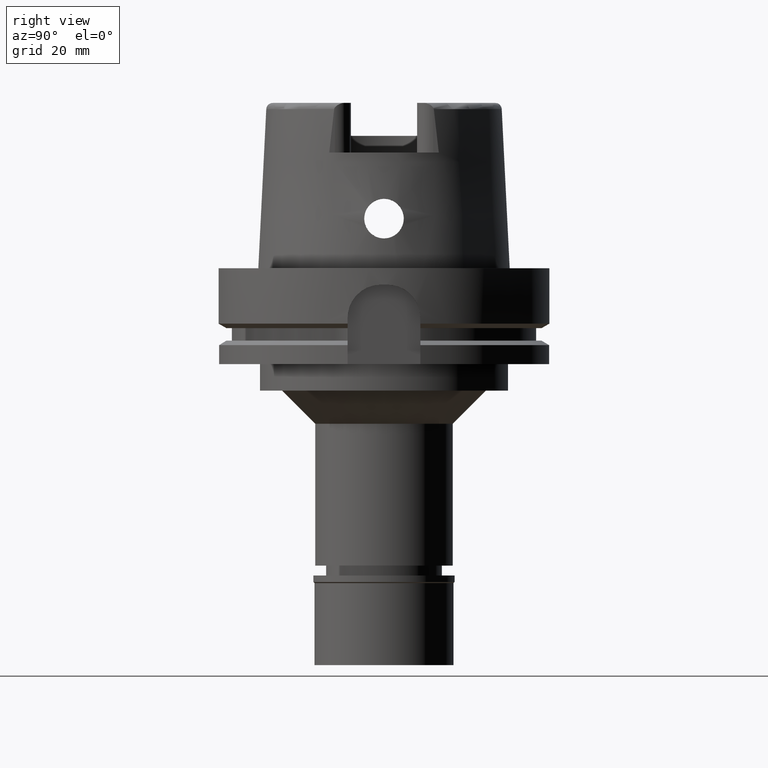
[diagram: clean part render]
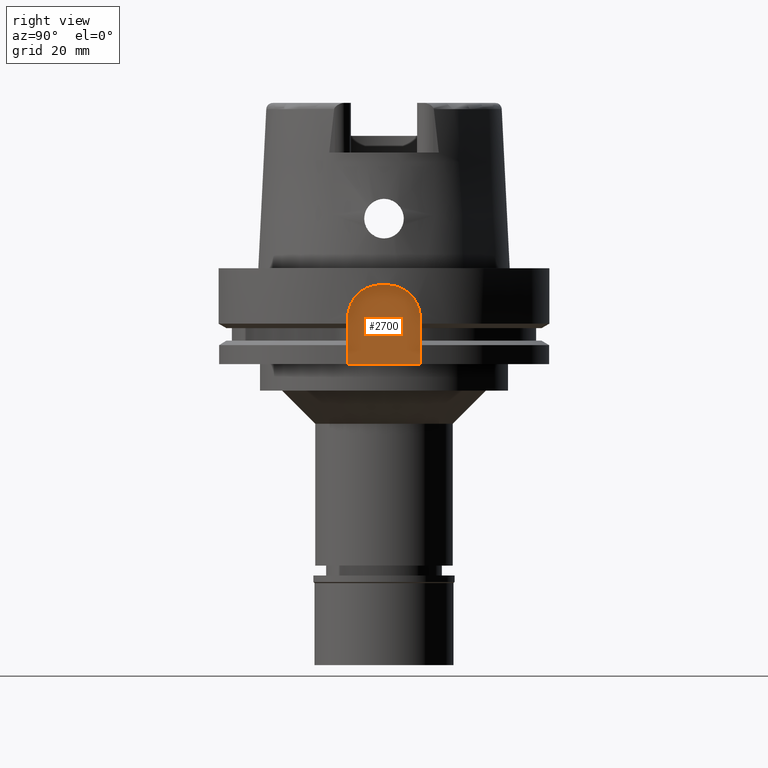
[diagram: same view with one face highlighted and labeled with its STEP entity id]
A machine part, right view. The second image highlights one B-rep face of the part: STEP entity #2700.
In plain terms, the highlighted planar face has unit normal (1, 0, 0).
Its self-contained STEP definition (entity closure, byte-faithful):
#115 = DIRECTION ( 'NONE',  ( 0.0000000000000000000, 0.0000000000000000000, -1.000000000000000000 ) ) ;
#216 = VECTOR ( 'NONE', #5452, 1000.000000000000000 ) ;
#384 = LINE ( 'NONE', #3946, #216 ) ;
#596 = CARTESIAN_POINT ( 'NONE',  ( 44.00000000000000000, 11.00000000000000000, -15.00000000000000000 ) ) ;
#630 = EDGE_CURVE ( 'NONE', #4589, #4876, #4428, .T. ) ;
#684 = CARTESIAN_POINT ( 'NONE',  ( 44.00000000000000000, 1.000000000000000000, -5.000000000000000000 ) ) ;
#731 = CARTESIAN_POINT ( 'NONE',  ( 44.00000000000000000, -11.00000000000000000, -15.00000000000000000 ) ) ;
#827 = PLANE ( 'NONE',  #5430 ) ;
#1052 = CIRCLE ( 'NONE', #1500, 10.00000000000000000 ) ;
#1086 = EDGE_LOOP ( 'NONE', ( #1889, #4165, #2311, #1941, #5162, #4197 ) ) ;
#1179 = EDGE_CURVE ( 'NONE', #4626, #4589, #384, .T. ) ;
#1219 = AXIS2_PLACEMENT_3D ( 'NONE', #3400, #2992, #4689 ) ;
#1423 = VECTOR ( 'NONE', #115, 1000.000000000000000 ) ;
#1453 = CARTESIAN_POINT ( 'NONE',  ( 44.00000000000000000, 1.000000000000000000, -15.00000000000000000 ) ) ;
#1500 = AXIS2_PLACEMENT_3D ( 'NONE', #1453, #4420, #4201 ) ;
#1630 = CARTESIAN_POINT ( 'NONE',  ( 44.00000000000000000, 0.0000000000000000000, 0.0000000000000000000 ) ) ;
#1797 = CARTESIAN_POINT ( 'NONE',  ( 44.00000000000000000, -11.00000000000000000, -29.00000000000000000 ) ) ;
#1805 = EDGE_CURVE ( 'NONE', #5410, #4835, #1052, .T. ) ;
#1889 = ORIENTED_EDGE ( 'NONE', *, *, #2793, .F. ) ;
#1941 = ORIENTED_EDGE ( 'NONE', *, *, #630, .F. ) ;
#2264 = LINE ( 'NONE', #596, #1423 ) ;
#2311 = ORIENTED_EDGE ( 'NONE', *, *, #2503, .F. ) ;
#2503 = EDGE_CURVE ( 'NONE', #4876, #5410, #5045, .T. ) ;
#2700 = ADVANCED_FACE ( 'NONE', ( #3366 ), #827, .T. ) ;
#2793 = EDGE_CURVE ( 'NONE', #4835, #5489, #2264, .T. ) ;
#2992 = DIRECTION ( 'NONE',  ( -1.000000000000000000, 0.0000000000000000000, 0.0000000000000000000 ) ) ;
#3215 = VECTOR ( 'NONE', #5444, 1000.000000000000000 ) ;
#3307 = LINE ( 'NONE', #3476, #3215 ) ;
#3340 = DIRECTION ( 'NONE',  ( 1.000000000000000000, 0.0000000000000000000, 0.0000000000000000000 ) ) ;
#3366 = FACE_OUTER_BOUND ( 'NONE', #1086, .T. ) ;
#3400 = CARTESIAN_POINT ( 'NONE',  ( 44.00000000000000000, -1.000000000000000000, -15.00000000000000000 ) ) ;
#3432 = CARTESIAN_POINT ( 'NONE',  ( 44.00000000000000000, -1.000000000000000000, -5.000000000000000000 ) ) ;
#3476 = CARTESIAN_POINT ( 'NONE',  ( 44.00000000000000000, 11.00000000000000000, -29.00000000000000000 ) ) ;
#3887 = EDGE_CURVE ( 'NONE', #5489, #4626, #3307, .T. ) ;
#3946 = CARTESIAN_POINT ( 'NONE',  ( 44.00000000000000000, -11.00000000000000000, -29.00000000000000000 ) ) ;
#4070 = CARTESIAN_POINT ( 'NONE',  ( 44.00000000000000000, 11.00000000000000000, -29.00000000000000000 ) ) ;
#4165 = ORIENTED_EDGE ( 'NONE', *, *, #1805, .F. ) ;
#4197 = ORIENTED_EDGE ( 'NONE', *, *, #3887, .F. ) ;
#4201 = DIRECTION ( 'NONE',  ( 0.0000000000000000000, 2.086004979862110531E-14, 1.000000000000000000 ) ) ;
#4330 = DIRECTION ( 'NONE',  ( 0.0000000000000000000, 1.000000000000000000, 0.0000000000000000000 ) ) ;
#4420 = DIRECTION ( 'NONE',  ( -1.000000000000000000, 0.0000000000000000000, 0.0000000000000000000 ) ) ;
#4428 = CIRCLE ( 'NONE', #1219, 9.999999999999998224 ) ;
#4589 = VERTEX_POINT ( 'NONE', #731 ) ;
#4626 = VERTEX_POINT ( 'NONE', #1797 ) ;
#4689 = DIRECTION ( 'NONE',  ( 0.0000000000000000000, -1.000000000000000000, 0.0000000000000000000 ) ) ;
#4835 = VERTEX_POINT ( 'NONE', #5270 ) ;
#4876 = VERTEX_POINT ( 'NONE', #4937 ) ;
#4937 = CARTESIAN_POINT ( 'NONE',  ( 44.00000000000000000, -1.000000000000000000, -5.000000000000000000 ) ) ;
#5045 = LINE ( 'NONE', #3432, #5333 ) ;
#5162 = ORIENTED_EDGE ( 'NONE', *, *, #1179, .F. ) ;
#5270 = CARTESIAN_POINT ( 'NONE',  ( 44.00000000000000000, 11.00000000000000000, -15.00000000000000000 ) ) ;
#5333 = VECTOR ( 'NONE', #5484, 1000.000000000000000 ) ;
#5410 = VERTEX_POINT ( 'NONE', #684 ) ;
#5430 = AXIS2_PLACEMENT_3D ( 'NONE', #1630, #3340, #4330 ) ;
#5444 = DIRECTION ( 'NONE',  ( 0.0000000000000000000, -1.000000000000000000, 0.0000000000000000000 ) ) ;
#5452 = DIRECTION ( 'NONE',  ( 0.0000000000000000000, 0.0000000000000000000, 1.000000000000000000 ) ) ;
#5484 = DIRECTION ( 'NONE',  ( 0.0000000000000000000, 1.000000000000000000, 0.0000000000000000000 ) ) ;
#5489 = VERTEX_POINT ( 'NONE', #4070 ) ;